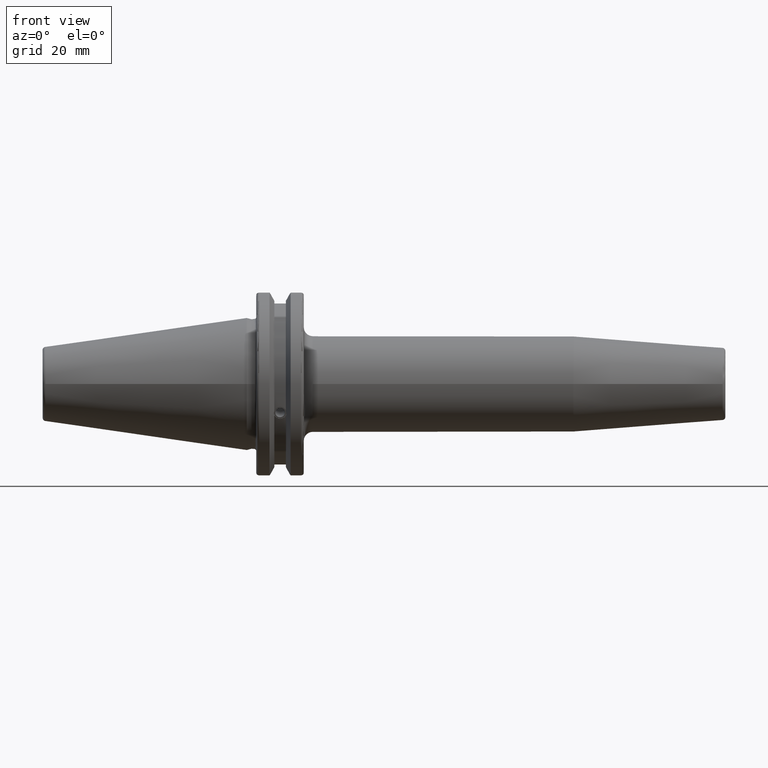
[diagram: clean part render]
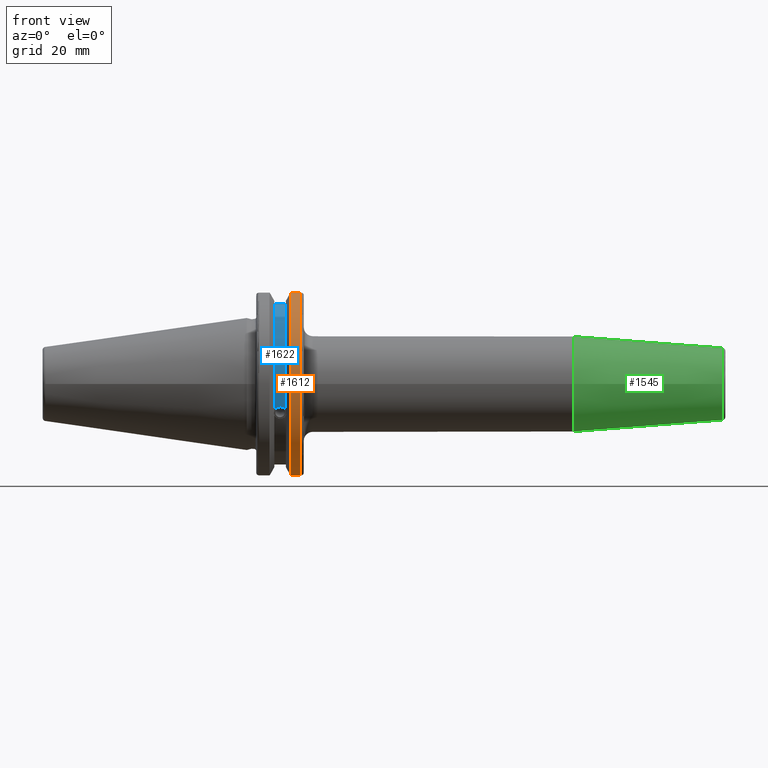
[diagram: same view with three faces highlighted in distinct colors, each labeled with its STEP entity id]
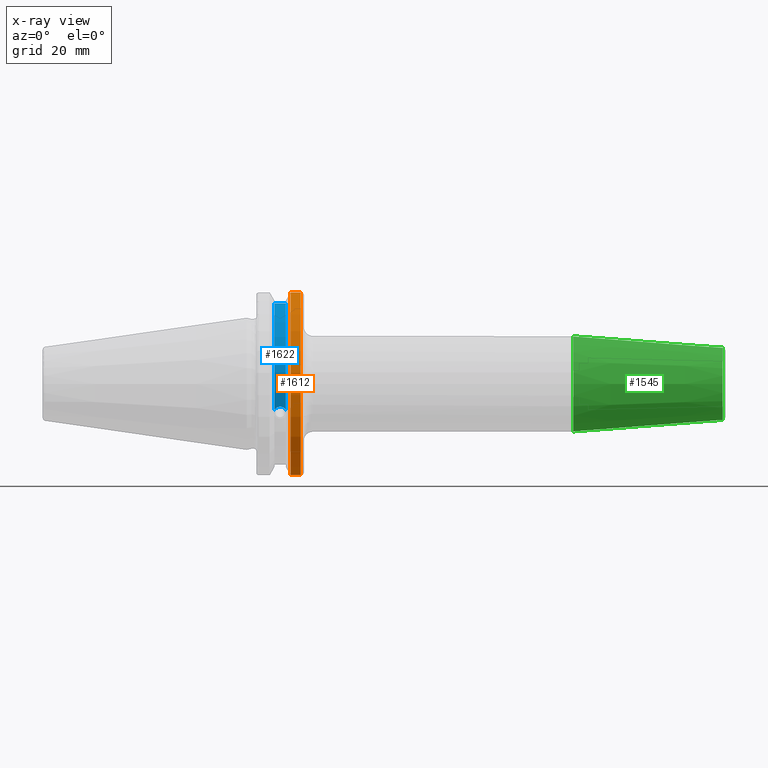
[diagram: x-ray of the same camera — body ghosted, the three highlighted faces saturated]
A machine part, front view with three faces highlighted in distinct colors.
The next image is the same camera in x-ray (body ghosted, the three faces saturated) — at least one of them is partly hidden behind the body in this view.
Their STEP definitions:

[orange] entity #1612 — the highlighted cylindrical surface (partial cylindrical patch) has radius 31.75 mm, axis along (1, 0, 0).
#161=LINE('',#3069,#257);
#162=LINE('',#3071,#258);
#257=VECTOR('',#2251,10.);
#258=VECTOR('',#2254,10.);
#290=CYLINDRICAL_SURFACE('',#1814,31.75);
#445=FACE_OUTER_BOUND('',#553,.T.);
#553=EDGE_LOOP('',(#1441,#1442,#1443,#1444));
#607=CIRCLE('',#1726,31.75);
#633=CIRCLE('',#1786,31.75);
#716=VERTEX_POINT('',#2621);
#717=VERTEX_POINT('',#2625);
#781=VERTEX_POINT('',#2912);
#782=VERTEX_POINT('',#2921);
#895=EDGE_CURVE('',#717,#716,#607,.T.);
#985=EDGE_CURVE('',#781,#782,#633,.T.);
#1031=EDGE_CURVE('',#782,#716,#161,.T.);
#1032=EDGE_CURVE('',#717,#781,#162,.T.);
#1441=ORIENTED_EDGE('',*,*,#985,.F.);
#1442=ORIENTED_EDGE('',*,*,#1032,.F.);
#1443=ORIENTED_EDGE('',*,*,#895,.T.);
#1444=ORIENTED_EDGE('',*,*,#1031,.F.);
#1612=ADVANCED_FACE('',(#445),#290,.T.);
#1726=AXIS2_PLACEMENT_3D('',#2626,#2018,#2019);
#1786=AXIS2_PLACEMENT_3D('',#2922,#2172,#2173);
#1814=AXIS2_PLACEMENT_3D('',#3070,#2252,#2253);
#2018=DIRECTION('center_axis',(1.,0.,0.));
#2019=DIRECTION('ref_axis',(0.,0.,-1.));
#2172=DIRECTION('center_axis',(1.,0.,0.));
#2173=DIRECTION('ref_axis',(0.,-1.,1.60812264967664E-16));
#2251=DIRECTION('',(-1.,0.,0.));
#2252=DIRECTION('center_axis',(1.,0.,0.));
#2253=DIRECTION('ref_axis',(0.,-1.,1.22464679914735E-16));
#2254=DIRECTION('',(1.,0.,0.));
#2621=CARTESIAN_POINT('',(14.6602667690756,-8.67204822802686,-30.5427254764662));
#2625=CARTESIAN_POINT('',(14.6602667690756,-8.67204822802685,30.5427254764662));
#2626=CARTESIAN_POINT('Origin',(14.6602667690756,0.,0.));
#2912=CARTESIAN_POINT('',(18.05,-8.67204822802685,30.5427254764662));
#2921=CARTESIAN_POINT('',(18.05,-8.67204822802686,-30.5427254764662));
#2922=CARTESIAN_POINT('Origin',(18.05,0.,0.));
#3069=CARTESIAN_POINT('',(16.8551333845378,-8.67204822802686,-30.5427254764662));
#3070=CARTESIAN_POINT('Origin',(16.8551333845378,0.,0.));
#3071=CARTESIAN_POINT('',(16.8551333845378,-8.67204822802685,30.5427254764662));

[blue] entity #1622 — the highlighted cylindrical surface (partial cylindrical patch) has radius 28.15 mm, axis along (1, 0, 0).
#36=B_SPLINE_CURVE_WITH_KNOTS('',3,(#2536,#2537,#2538,#2539,#2540,#2541,
#2542,#2543,#2544,#2545,#2546,#2547,#2548,#2549),.UNSPECIFIED.,.F.,.F.,
(4,2,2,2,2,2,4),(0.401639126382403,0.474814416953736,0.553950208498303,
0.63308600004287,0.712221791587437,0.791357583132004,0.864532873703336),
 .UNSPECIFIED.);
#141=LINE('',#2949,#237);
#237=VECTOR('',#2179,10.);
#295=CYLINDRICAL_SURFACE('',#1829,28.15);
#455=FACE_OUTER_BOUND('',#563,.T.);
#563=EDGE_LOOP('',(#1480,#1481,#1482,#1483));
#648=CIRCLE('',#1830,28.15);
#649=CIRCLE('',#1831,28.15);
#702=VERTEX_POINT('',#2533);
#703=VERTEX_POINT('',#2535);
#786=VERTEX_POINT('',#2946);
#787=VERTEX_POINT('',#2948);
#877=EDGE_CURVE('',#703,#702,#36,.T.);
#992=EDGE_CURVE('',#787,#786,#141,.T.);
#1043=EDGE_CURVE('',#787,#702,#648,.T.);
#1044=EDGE_CURVE('',#786,#703,#649,.T.);
#1480=ORIENTED_EDGE('',*,*,#877,.T.);
#1481=ORIENTED_EDGE('',*,*,#1043,.F.);
#1482=ORIENTED_EDGE('',*,*,#992,.T.);
#1483=ORIENTED_EDGE('',*,*,#1044,.T.);
#1622=ADVANCED_FACE('',(#455),#295,.T.);
#1829=AXIS2_PLACEMENT_3D('',#3097,#2287,#2288);
#1830=AXIS2_PLACEMENT_3D('',#3098,#2289,#2290);
#1831=AXIS2_PLACEMENT_3D('',#3099,#2291,#2292);
#2179=DIRECTION('',(-1.,0.,0.));
#2287=DIRECTION('center_axis',(1.,0.,0.));
#2288=DIRECTION('ref_axis',(0.,-0.887654187951484,0.46051063246378));
#2289=DIRECTION('center_axis',(1.,0.,0.));
#2290=DIRECTION('ref_axis',(0.,0.,-1.));
#2291=DIRECTION('center_axis',(1.,0.,0.));
#2292=DIRECTION('ref_axis',(0.,0.,-1.));
#2533=CARTESIAN_POINT('',(13.0491,-26.734714844398,-8.81348524641211));
#2535=CARTESIAN_POINT('',(9.2191,-26.734714844398,-8.81348524641212));
#2536=CARTESIAN_POINT('Ctrl Pts',(9.2191,-26.734714844398,-8.81348524641212));
#2537=CARTESIAN_POINT('Ctrl Pts',(9.32533057097183,-26.8086519721597,-8.58920529678291));
#2538=CARTESIAN_POINT('Ctrl Pts',(9.47682013770509,-26.8729987454904,-8.38416529997369));
#2539=CARTESIAN_POINT('Ctrl Pts',(9.83557062657411,-26.9778908791383,-8.04056861831091));
#2540=CARTESIAN_POINT('Ctrl Pts',(10.0716450112988,-27.0233016799732,-7.88512567185902));
#2541=CARTESIAN_POINT('Ctrl Pts',(10.5890125426388,-27.0826966800569,-7.6786444840004));
#2542=CARTESIAN_POINT('Ctrl Pts',(10.8703140281848,-27.0968804077294,-7.62768458768512));
#2543=CARTESIAN_POINT('Ctrl Pts',(11.3978859718152,-27.0968804077294,-7.62768458768512));
#2544=CARTESIAN_POINT('Ctrl Pts',(11.6791874573612,-27.0826966800569,-7.6786444840004));
#2545=CARTESIAN_POINT('Ctrl Pts',(12.1965549887012,-27.0233016799732,-7.88512567185902));
#2546=CARTESIAN_POINT('Ctrl Pts',(12.4326293734259,-26.9778908791383,-8.04056861831091));
#2547=CARTESIAN_POINT('Ctrl Pts',(12.7913798622949,-26.8729987454904,-8.38416529997369));
#2548=CARTESIAN_POINT('Ctrl Pts',(12.9428694290282,-26.8086519721597,-8.5892052967829));
#2549=CARTESIAN_POINT('Ctrl Pts',(13.0491,-26.734714844398,-8.81348524641211));
#2946=CARTESIAN_POINT('',(9.2191,-8.19,26.932255754021));
#2948=CARTESIAN_POINT('',(13.0491,-8.19,26.932255754021));
#2949=CARTESIAN_POINT('',(11.1341,-8.19,26.932255754021));
#3097=CARTESIAN_POINT('Origin',(11.1341,0.,0.));
#3098=CARTESIAN_POINT('Origin',(13.0491,0.,0.));
#3099=CARTESIAN_POINT('Origin',(9.2191,0.,0.));

[green] entity #1545 — the highlighted conical surface has half-angle 4.5 deg.
#61=CONICAL_SURFACE('',#1671,14.,0.0785472331893706);
#75=LINE('',#2352,#171);
#171=VECTOR('',#1881,14.);
#378=FACE_OUTER_BOUND('',#473,.T.);
#473=EDGE_LOOP('',(#1071,#1072,#1073,#1074,#1075));
#583=CIRCLE('',#1669,12.0725331373702);
#584=CIRCLE('',#1670,12.0725331373702);
#585=CIRCLE('',#1672,16.);
#661=VERTEX_POINT('',#2345);
#662=VERTEX_POINT('',#2347);
#663=VERTEX_POINT('',#2351);
#822=EDGE_CURVE('',#661,#662,#583,.T.);
#823=EDGE_CURVE('',#662,#661,#584,.T.);
#824=EDGE_CURVE('',#662,#663,#75,.T.);
#825=EDGE_CURVE('',#663,#663,#585,.T.);
#1071=ORIENTED_EDGE('',*,*,#823,.F.);
#1072=ORIENTED_EDGE('',*,*,#824,.T.);
#1073=ORIENTED_EDGE('',*,*,#825,.T.);
#1074=ORIENTED_EDGE('',*,*,#824,.F.);
#1075=ORIENTED_EDGE('',*,*,#822,.F.);
#1545=ADVANCED_FACE('',(#378),#61,.T.);
#1669=AXIS2_PLACEMENT_3D('',#2348,#1875,#1876);
#1670=AXIS2_PLACEMENT_3D('',#2349,#1877,#1878);
#1671=AXIS2_PLACEMENT_3D('',#2350,#1879,#1880);
#1672=AXIS2_PLACEMENT_3D('',#2353,#1882,#1883);
#1875=DIRECTION('center_axis',(1.,0.,0.));
#1876=DIRECTION('ref_axis',(0.,-1.,3.06161699786838E-17));
#1877=DIRECTION('center_axis',(1.,0.,0.));
#1878=DIRECTION('ref_axis',(0.,-1.,3.06161699786838E-17));
#1879=DIRECTION('center_axis',(-1.,0.,0.));
#1880=DIRECTION('ref_axis',(0.,1.,0.));
#1881=DIRECTION('',(-0.996916751786393,-0.0784664897116405,-9.60937354656893E-18));
#1882=DIRECTION('center_axis',(1.,0.,0.));
#1883=DIRECTION('ref_axis',(0.,0.,-1.));
#2345=CARTESIAN_POINT('',(159.078466489712,-1.47845890642808E-15,12.0725331373702));
#2347=CARTESIAN_POINT('',(159.078466489712,-12.0725331373702,-1.47845890642808E-15));
#2348=CARTESIAN_POINT('Origin',(159.078466489712,0.,-1.8480736330351E-15));
#2349=CARTESIAN_POINT('Origin',(159.078466489712,0.,-1.8480736330351E-15));
#2350=CARTESIAN_POINT('Origin',(134.59,0.,0.));
#2351=CARTESIAN_POINT('',(109.18,-16.,-1.95943487863577E-15));
#2352=CARTESIAN_POINT('',(134.59,-14.,-1.71450551880629E-15));
#2353=CARTESIAN_POINT('Origin',(109.18,0.,0.));